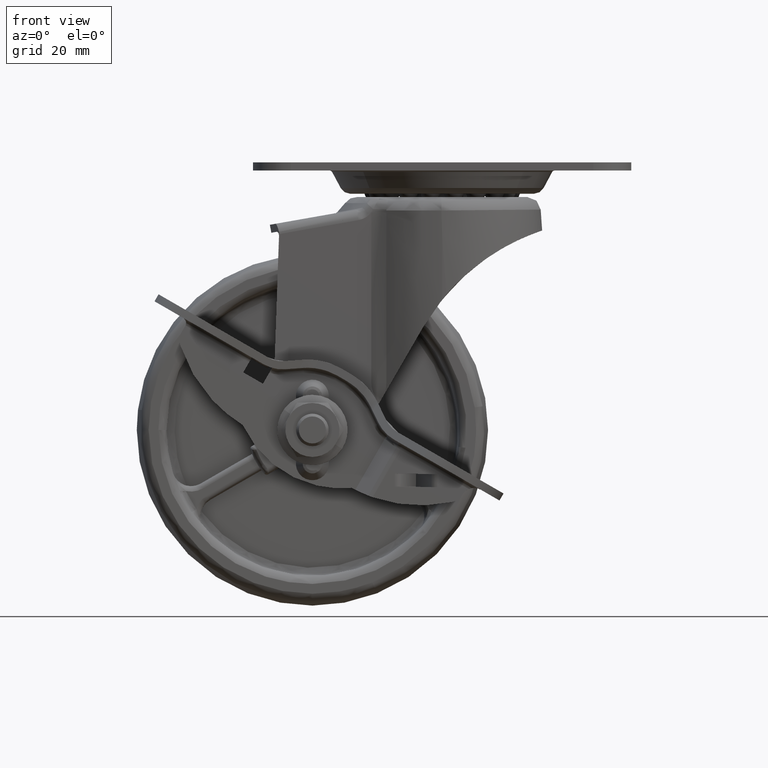
[diagram: clean part render]
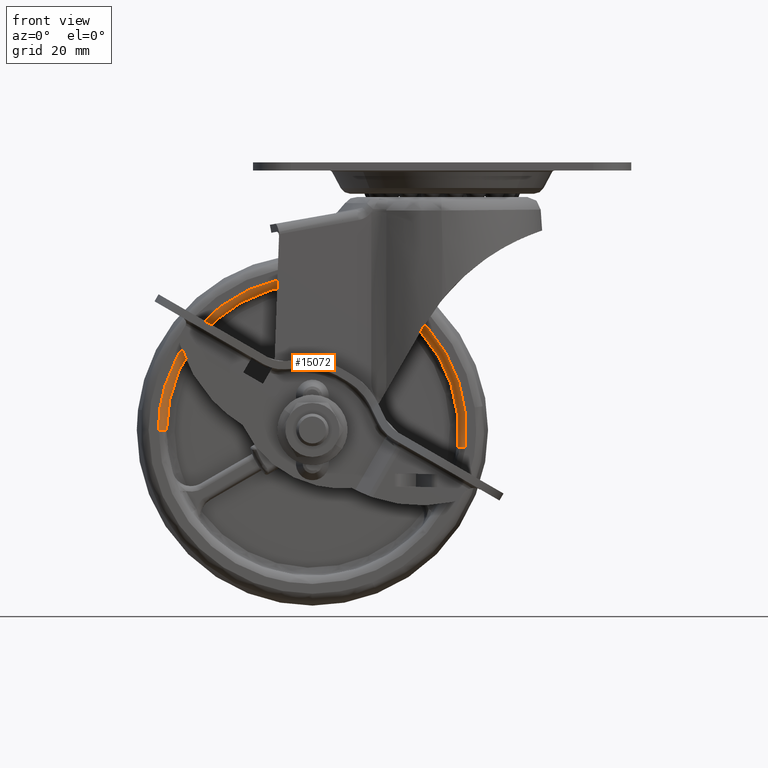
[diagram: same view with one face highlighted and labeled with its STEP entity id]
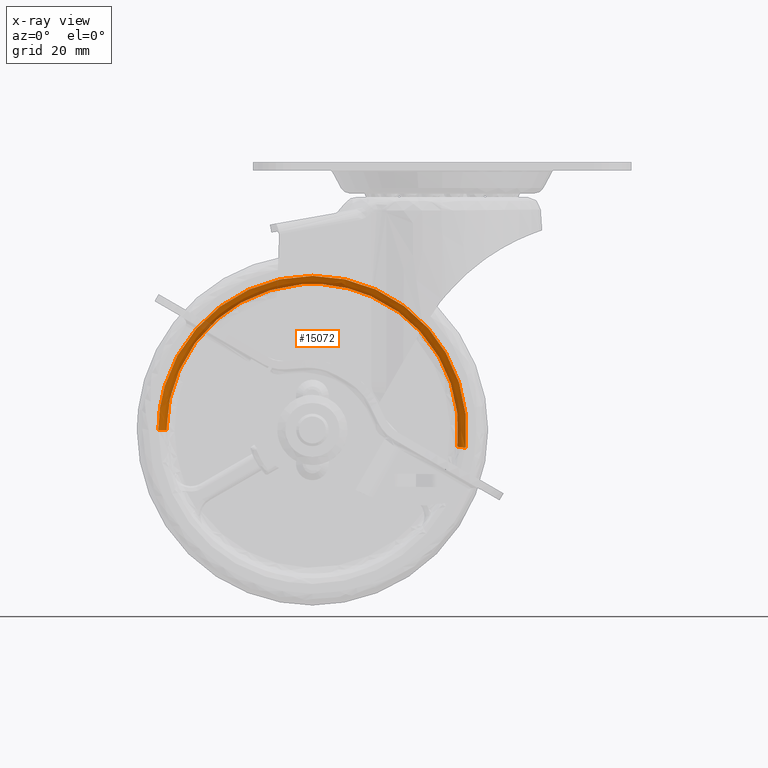
[diagram: x-ray of the same camera — body ghosted, the highlighted face saturated]
A machine part, front view. The second image highlights one B-rep face of the part: STEP entity #15072.
The next image is the same camera in x-ray: the body ghosted, the highlighted face saturated — about 2% of this face is hidden behind the body in this view.
In plain terms, the highlighted face is a freeform B-spline surface patch.
Its self-contained STEP definition (entity closure, byte-faithful):
#14926=CARTESIAN_POINT('',(4.412712792368393,-10.496388482712499,-51.302734669569027));
#14927=CARTESIAN_POINT('',(4.604026481268000,-10.496388482712497,-49.656906331397060));
#14928=CARTESIAN_POINT('',(4.604026481268001,-10.496388482712499,-47.999996000000010));
#14929=CARTESIAN_POINT('',(4.604026481268005,-10.496388482712497,-19.395969518732016));
#14930=CARTESIAN_POINT('',(-24.0,-10.496388482712499,-19.395969518731999));
#14931=CARTESIAN_POINT('',(-52.604026481268001,-10.496388482712497,-19.395969518732002));
#14932=CARTESIAN_POINT('',(-52.604026481268001,-10.496388482712499,-47.999996000000003));
#14933=CARTESIAN_POINT('',(2.703585513134143,-10.616004249260582,-51.104063011653352));
#14934=CARTESIAN_POINT('',(2.883390992769161,-10.616004249260577,-49.557237191483161));
#14935=CARTESIAN_POINT('',(2.883390992769161,-10.616004249260580,-47.999996000000017));
#14936=CARTESIAN_POINT('',(2.883390992769166,-10.616004249260579,-21.116605007230852));
#14937=CARTESIAN_POINT('',(-23.999999999999989,-10.616004249260580,-21.116605007230838));
#14938=CARTESIAN_POINT('',(-50.883390992769158,-10.616004249260579,-21.116605007230834));
#14939=CARTESIAN_POINT('',(-50.883390992769165,-10.616004249260580,-47.999995999999996));
#14940=CARTESIAN_POINT('',(2.823040727230704,-8.895413636686925,-51.117948674657846));
#14941=CARTESIAN_POINT('',(3.003650544622349,-8.895413636686918,-49.564203318928378));
#14942=CARTESIAN_POINT('',(3.003650544622351,-8.895413636686921,-47.999996000000010));
#14943=CARTESIAN_POINT('',(3.003650544622353,-8.895413636686920,-20.996345455377668));
#14944=CARTESIAN_POINT('',(-23.999999999999996,-8.895413636686921,-20.996345455377657));
#14945=CARTESIAN_POINT('',(-51.003650544622346,-8.895413636686920,-20.996345455377636));
#14946=CARTESIAN_POINT('',(-51.003650544622353,-8.895413636686921,-47.999995999999989));
#14954=(BOUNDED_SURFACE()B_SPLINE_SURFACE(2,2,((#14926,#14933,#14940),(#14927,#14934,#14941),(#14928,#14935,#14942),(#14929,#14936,#14943),(#14930,#14937,#14944),(#14931,#14938,#14945),(#14932,#14939,#14946)),.UNSPECIFIED.,.F.,.F.,.U.)B_SPLINE_SURFACE_WITH_KNOTS((3,2,2,3),(3,3),(0.0,3.791412610470240,51.184115438551707,98.576818266633182),(0.0,2.733556342804873),.UNSPECIFIED.)GEOMETRIC_REPRESENTATION_ITEM()RATIONAL_B_SPLINE_SURFACE(((0.870831809919692,0.569876296320330,0.866007996426050),(0.888744147605105,0.581598211553931,0.883821111993890),(0.910068355261767,0.595552870011418,0.905027198103471),(0.643515505348883,0.421119472940184,0.639950868937225),(0.910068355261767,0.595552870011418,0.905027198103471),(0.643515505348883,0.421119472940184,0.639950868937225),(0.910068355261767,0.595552870011418,0.905027198103471)))REPRESENTATION_ITEM('')SURFACE());
#14955=CARTESIAN_POINT('',(4.309381704082955,-10.499999999999870,-51.290726535654841));
#14956=VERTEX_POINT('',#14955);
#14957=CARTESIAN_POINT('',(-24.0,-10.499999999999860,-19.499995999999999));
#14958=VERTEX_POINT('',#14957);
#14959=CARTESIAN_POINT('',(4.309381704082955,-10.499999999999870,-51.290726535654841));
#14960=CARTESIAN_POINT('',(4.562754093582614,-10.499999999999840,-49.114890927783769));
#14961=CARTESIAN_POINT('',(4.563598730918709,-10.499999999999950,-45.460801672558240));
#14962=CARTESIAN_POINT('',(3.635841636756370,-10.499999999999760,-40.653783437222224));
#14963=CARTESIAN_POINT('',(2.162997361936657,-10.499999999999901,-36.384715677575947));
#14964=CARTESIAN_POINT('',(0.256278765614224,-10.499999999999851,-32.841403460470872));
#14965=CARTESIAN_POINT('',(-2.283672832446797,-10.499999999999870,-29.420121721277258));
#14966=CARTESIAN_POINT('',(-4.767257672954857,-10.499999999999851,-26.843770744165010));
#14967=CARTESIAN_POINT('',(-7.775885941030682,-10.499999999999890,-24.482738520397611));
#14968=CARTESIAN_POINT('',(-10.513181211389570,-10.499999999999760,-22.828868653626369));
#14969=CARTESIAN_POINT('',(-13.354319270316720,-10.499999999999790,-21.509315854874480));
#14970=CARTESIAN_POINT('',(-16.435136816702620,-10.499999999999901,-20.444719304376370));
#14971=CARTESIAN_POINT('',(-20.057121890009910,-10.499999999999851,-19.682135824950748));
#14972=CARTESIAN_POINT('',(-22.685705033314932,-10.499999999999860,-19.499944133860240));
#14973=CARTESIAN_POINT('',(-24.0,-10.499999999999860,-19.499995999999999));
#14974=B_SPLINE_CURVE_WITH_KNOTS('',3,(#14959,#14960,#14961,#14962,#14963,#14964,#14965,#14966,#14967,#14968,#14969,#14970,#14971,#14972,#14973),.UNSPECIFIED.,.F.,.U.,(4,1,1,1,1,1,1,1,1,1,1,1,4),(0.000000071201974,6.571500145046379,10.889921867101460,14.645083189467110,20.090044845557362,22.906441718963752,27.412526125910141,30.792194787975038,34.359585410954978,36.988193631550402,40.180067459563297,44.122983706749807,48.065868984872537),.UNSPECIFIED.);
#14975=EDGE_CURVE('',#14956,#14958,#14974,.T.);
#14976=ORIENTED_EDGE('',*,*,#14975,.T.);
#14977=CARTESIAN_POINT('',(-52.499999997144222,-10.499999999999870,-47.999996000000003));
#14978=VERTEX_POINT('',#14977);
#14979=CARTESIAN_POINT('',(-24.0,-10.499999999999860,-19.499995999999999));
#14980=CARTESIAN_POINT('',(-25.515575800084068,-10.499999999999860,-19.499900577046500));
#14981=CARTESIAN_POINT('',(-28.255233663697911,-10.499999999999890,-19.719050243774092));
#14982=CARTESIAN_POINT('',(-31.957207799734629,-10.499999999999870,-20.562316351564771));
#14983=CARTESIAN_POINT('',(-34.980416022767812,-10.499999999999810,-21.644068841059831));
#14984=CARTESIAN_POINT('',(-37.978886390414672,-10.499999999999890,-23.084761861775672));
#14985=CARTESIAN_POINT('',(-40.639678573633937,-10.499999999999851,-24.781179225186062));
#14986=CARTESIAN_POINT('',(-43.398165519193107,-10.499999999999860,-27.030865999391700));
#14987=CARTESIAN_POINT('',(-45.676352077192249,-10.499999999999870,-29.380043727464859));
#14988=CARTESIAN_POINT('',(-47.850310092198150,-10.499999999999870,-32.274031425151790));
#14989=CARTESIAN_POINT('',(-49.400980461614878,-10.499999999999860,-34.953536122439971));
#14990=CARTESIAN_POINT('',(-50.725034374362522,-10.499999999999851,-37.940574935710352));
#14991=CARTESIAN_POINT('',(-51.633430305875272,-10.499999999999879,-40.777722407012782));
#14992=CARTESIAN_POINT('',(-52.327962272060262,-10.499999999999870,-44.269378480763521));
#14993=CARTESIAN_POINT('',(-52.500068857864882,-10.499999999999719,-46.601005579659571));
#14994=CARTESIAN_POINT('',(-52.499999997144222,-10.499999999999870,-47.999996000000003));
#14995=B_SPLINE_CURVE_WITH_KNOTS('',3,(#14979,#14980,#14981,#14982,#14983,#14984,#14985,#14986,#14987,#14988,#14989,#14990,#14991,#14992,#14993,#14994),.UNSPECIFIED.,.F.,.U.,(4,1,1,1,1,1,1,1,1,1,1,1,1,4),(0.000000069441739,4.546722487746628,8.219068648021619,11.366816357134381,14.164805235654390,18.186909918933349,20.810060678315399,24.832105912141550,27.979825787382438,31.652207099156371,34.100449000636338,37.772802682675483,40.570799467077570,44.767765538037111),.UNSPECIFIED.);
#14996=EDGE_CURVE('',#14958,#14978,#14995,.T.);
#14997=ORIENTED_EDGE('',*,*,#14996,.T.);
#14998=CARTESIAN_POINT('',(-51.000000000000199,-9.000000546694171,-47.999996000000131));
#14999=VERTEX_POINT('',#14998);
#15000=CARTESIAN_POINT('',(-52.499999997144222,-10.499999999999870,-47.999996000000003));
#15001=CARTESIAN_POINT('',(-52.303604028878652,-10.500204774849150,-47.999996000000067));
#15002=CARTESIAN_POINT('',(-52.009282801154178,-10.441289814754040,-47.999995999999889));
#15003=CARTESIAN_POINT('',(-51.606845117470968,-10.226235879296789,-47.999996000000117));
#15004=CARTESIAN_POINT('',(-51.315481256620693,-9.955552471240800,-47.999996000000003));
#15005=CARTESIAN_POINT('',(-51.066044750685172,-9.527553091788533,-47.999996000000060));
#15006=CARTESIAN_POINT('',(-50.999785618435169,-9.196386171451177,-47.999996000000223));
#15007=CARTESIAN_POINT('',(-51.000000000000199,-9.000000546694171,-47.999996000000131));
#15008=B_SPLINE_CURVE_WITH_KNOTS('',3,(#15000,#15001,#15002,#15003,#15004,#15005,#15006,#15007),.UNSPECIFIED.,.F.,.U.,(4,1,1,1,1,4),(0.000000286690615,0.589064449549412,0.883618520076984,1.362178116374803,1.767190151967134,2.356253431101047),.UNSPECIFIED.);
#15009=EDGE_CURVE('',#14978,#14999,#15008,.T.);
#15010=ORIENTED_EDGE('',*,*,#15009,.T.);
#15011=CARTESIAN_POINT('',(-25.990503326144601,-8.999999999999860,-21.073468253025151));
#15012=VERTEX_POINT('',#15011);
#15013=CARTESIAN_POINT('',(-25.990503326144601,-8.999999999999860,-21.073468253025151));
#15014=CARTESIAN_POINT('',(-26.935235801205469,-8.999999986175942,-21.143303524995812));
#15015=CARTESIAN_POINT('',(-29.235636177764700,-8.999999956964647,-21.435617812349179));
#15016=CARTESIAN_POINT('',(-32.453269067360772,-8.999999931759085,-22.274601846993399));
#15017=CARTESIAN_POINT('',(-36.017120053482742,-8.999999922827598,-23.725561392756511));
#15018=CARTESIAN_POINT('',(-39.080300259145922,-8.999999934192742,-25.495922262326211));
#15019=CARTESIAN_POINT('',(-41.736561865912357,-8.999999963894553,-27.576437849374749));
#15020=CARTESIAN_POINT('',(-44.082479575205703,-9.000000005982571,-29.849584474620620));
#15021=CARTESIAN_POINT('',(-46.102803626474397,-9.000000062216728,-32.356455852383853));
#15022=CARTESIAN_POINT('',(-47.774426953397032,-9.000000133216844,-35.103086710745643));
#15023=CARTESIAN_POINT('',(-49.246972118013197,-9.000000220231474,-38.195008520781073));
#15024=CARTESIAN_POINT('',(-50.600473535794329,-9.000000350596755,-42.421442030448212));
#15025=CARTESIAN_POINT('',(-51.000393545993909,-9.000000473904342,-46.000067223735194));
#15026=CARTESIAN_POINT('',(-51.000000000000199,-9.000000546694171,-47.999996000000131));
#15027=B_SPLINE_CURVE_WITH_KNOTS('',3,(#15013,#15014,#15015,#15016,#15017,#15018,#15019,#15020,#15021,#15022,#15023,#15024,#15025,#15026),.UNSPECIFIED.,.F.,.U.,(4,1,1,1,1,1,1,1,1,1,1,4),(0.000000067157664,2.841940076546209,6.947049628014618,9.946924025771196,14.367784706302750,17.525545663110272,20.051781139856189,24.156795238175111,27.156667265866680,29.682881599806489,34.419537503001337,40.419247603041967),.UNSPECIFIED.);
#15028=EDGE_CURVE('',#15012,#14999,#15027,.T.);
#15029=ORIENTED_EDGE('',*,*,#15028,.F.);
#15030=CARTESIAN_POINT('',(-22.009485798377650,-8.999999999999860,-21.073469056980802));
#15031=VERTEX_POINT('',#15030);
#15032=CARTESIAN_POINT('',(-22.009485798377650,-8.999999999999860,-21.073469056980802));
#15033=CARTESIAN_POINT('',(-23.334081700237618,-8.999999999999872,-20.975517927317082));
#15034=CARTESIAN_POINT('',(-24.665907350066959,-8.999999999999798,-20.975494055416380));
#15035=CARTESIAN_POINT('',(-25.990503326144601,-8.999999999999860,-21.073468253025151));
#15036=B_SPLINE_CURVE_WITH_KNOTS('',3,(#15032,#15033,#15034,#15035),.UNSPECIFIED.,.F.,.U.,(4,4),(5.604828E-010,3.984636054970693),.UNSPECIFIED.);
#15037=EDGE_CURVE('',#15031,#15012,#15036,.T.);
#15038=ORIENTED_EDGE('',*,*,#15037,.F.);
#15039=CARTESIAN_POINT('',(2.819414247197420,-9.000000546694178,-51.117530191830880));
#15040=VERTEX_POINT('',#15039);
#15041=CARTESIAN_POINT('',(2.819414247197420,-9.000000546694178,-51.117530191830880));
#15042=CARTESIAN_POINT('',(2.983173665130479,-9.000000498906783,-49.709588557982521));
#15043=CARTESIAN_POINT('',(3.077627908857478,-9.000000415490462,-47.152027575434040));
#15044=CARTESIAN_POINT('',(2.738969762680822,-9.000000318097385,-43.931616123392558));
#15045=CARTESIAN_POINT('',(2.078880555752990,-9.000000227813297,-40.765604142857470));
#15046=CARTESIAN_POINT('',(1.016651861250531,-9.000000143703337,-37.582640333328243));
#15047=CARTESIAN_POINT('',(-0.734203478427835,-9.000000062697486,-34.137274844062127));
#15048=CARTESIAN_POINT('',(-2.836660227440092,-9.000000000644892,-31.100695913102040));
#15049=CARTESIAN_POINT('',(-5.023542649245412,-8.999999960692600,-28.710717303930618));
#15050=CARTESIAN_POINT('',(-7.677277725804802,-8.999999931078436,-26.400147271484911));
#15051=CARTESIAN_POINT('',(-10.560071070433279,-8.999999917412714,-24.468430975747388));
#15052=CARTESIAN_POINT('',(-13.949426172291750,-8.999999922655114,-22.863221576870981));
#15053=CARTESIAN_POINT('',(-17.674121625930749,-8.999999945851428,-21.644065680709190));
#15054=CARTESIAN_POINT('',(-20.369712382713448,-8.999999976485935,-21.194494481125538));
#15055=CARTESIAN_POINT('',(-22.009485798377650,-8.999999999999860,-21.073469056980802));
#15056=B_SPLINE_CURVE_WITH_KNOTS('',3,(#15041,#15042,#15043,#15044,#15045,#15046,#15047,#15048,#15049,#15050,#15051,#15052,#15053,#15054,#15055),.UNSPECIFIED.,.F.,.U.,(4,1,1,1,1,1,1,1,1,1,1,1,4),(0.000000074840180,4.252292767842583,7.654174791478319,9.695284707867941,13.947624711632880,17.689658309408799,21.261625608408920,25.003601720010568,27.384923607995990,31.807350677083189,35.379314949048762,38.611093191669873,43.543754350236732),.UNSPECIFIED.);
#15057=EDGE_CURVE('',#15040,#15031,#15056,.T.);
#15058=ORIENTED_EDGE('',*,*,#15057,.F.);
#15059=CARTESIAN_POINT('',(4.309381704082955,-10.499999999999870,-51.290726535654841));
#15060=CARTESIAN_POINT('',(4.138709315134133,-10.500121792019209,-51.270887287743129));
#15061=CARTESIAN_POINT('',(3.846236244719090,-10.448815808011799,-51.236889722072220));
#15062=CARTESIAN_POINT('',(3.440307653734586,-10.243145198087630,-51.189703894296500));
#15063=CARTESIAN_POINT('',(3.114644228667715,-9.938677413198827,-51.151848225518002));
#15064=CARTESIAN_POINT('',(2.876570306008244,-9.503082194875770,-51.124174109030037));
#15065=CARTESIAN_POINT('',(2.819314366693969,-9.171819530153305,-51.117518581552240));
#15066=CARTESIAN_POINT('',(2.819414247197420,-9.000000546694178,-51.117530191830880));
#15067=B_SPLINE_CURVE_WITH_KNOTS('',3,(#15059,#15060,#15061,#15062,#15063,#15064,#15065,#15066),.UNSPECIFIED.,.F.,.U.,(4,1,1,1,1,4),(0.000000286690886,0.515429271761816,0.883618520277888,1.362178116688779,1.840826807364285,2.356253431638949),.UNSPECIFIED.);
#15068=EDGE_CURVE('',#14956,#15040,#15067,.T.);
#15069=ORIENTED_EDGE('',*,*,#15068,.F.);
#15070=EDGE_LOOP('',(#14976,#14997,#15010,#15029,#15038,#15058,#15069));
#15071=FACE_OUTER_BOUND('',#15070,.T.);
#15072=ADVANCED_FACE('',(#15071),#14954,.T.);